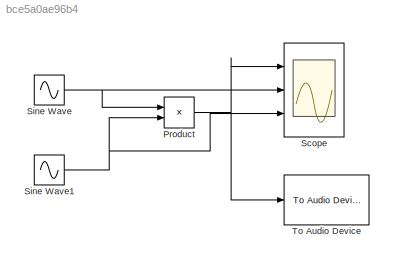
MODEL slx_bce5a0ae96b4
KIND model
BLOCK [Product] Product
  InputSameDT = off
  OutDataTypeStr = Inherit: Inherit via internal rule
  Ports = [2, 1]
  RndMeth = Floor
  SaturateOnIntegerOverflow = off
BLOCK [Scope] Scope
  Floating = off
  NumInputPorts = 3
  Ports = [3]
  ShowLegends = off
  YMax = 5~5~5
  YMin = -5~-5~-5
BLOCK [Sin] Sine Wave
  Frequency = 31.25
  Ports = [0, 1]
  SampleTime = 1/48000
BLOCK [Sin] Sine Wave1
  Frequency = 500
  Ports = [0, 1]
  SampleTime = 1/48000
BLOCK [Reference] To Audio Device  REF=dspsnks4/To Audio
Device
  Ports = [1]
  SourceBlock = dspsnks4/To Audio\nDevice
  SourceType = To Audio Device
  autoBufferSize = on
  bufferSize = 4096
  defaultOutputChannelMapping = on
  deviceDatatype = Determine from input data type
  deviceName = Default
  inheritSampleRate = on
  outputChannelMapping = 1:2
  outputNumUnderrunSamples = off
  queueDuration = 1.0
  sampleRate = 44100
NET Product:1 -> Scope:1, To Audio Device:1
NET Sine Wave1:1 -> Product:2, Scope:3
NET Sine Wave:1 -> Product:1, Scope:2
note: NET lines group one-source signal fan-out (src -> all destinations, sorted); 1:1 wires keep LINE
